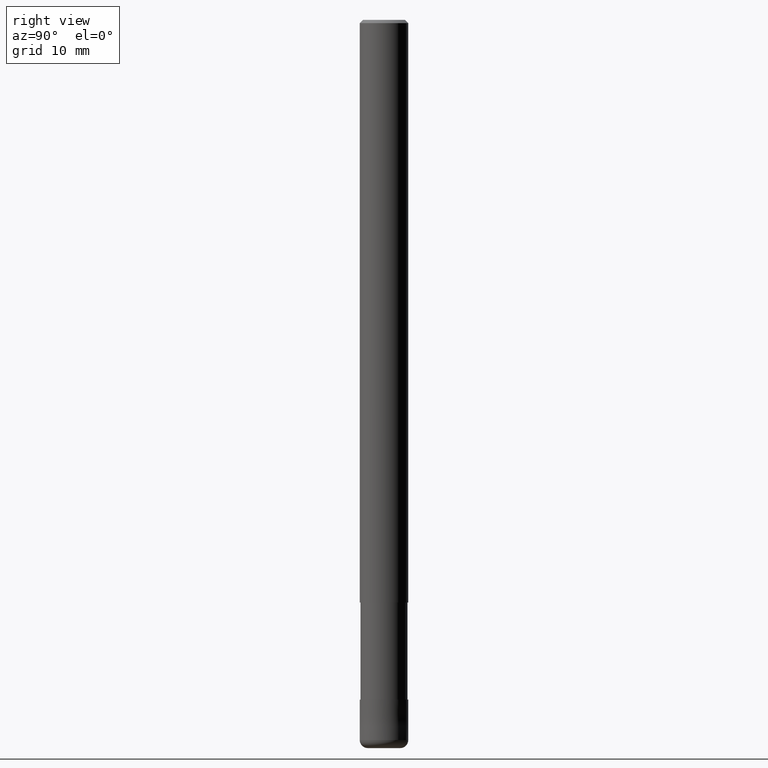
[diagram: clean part render]
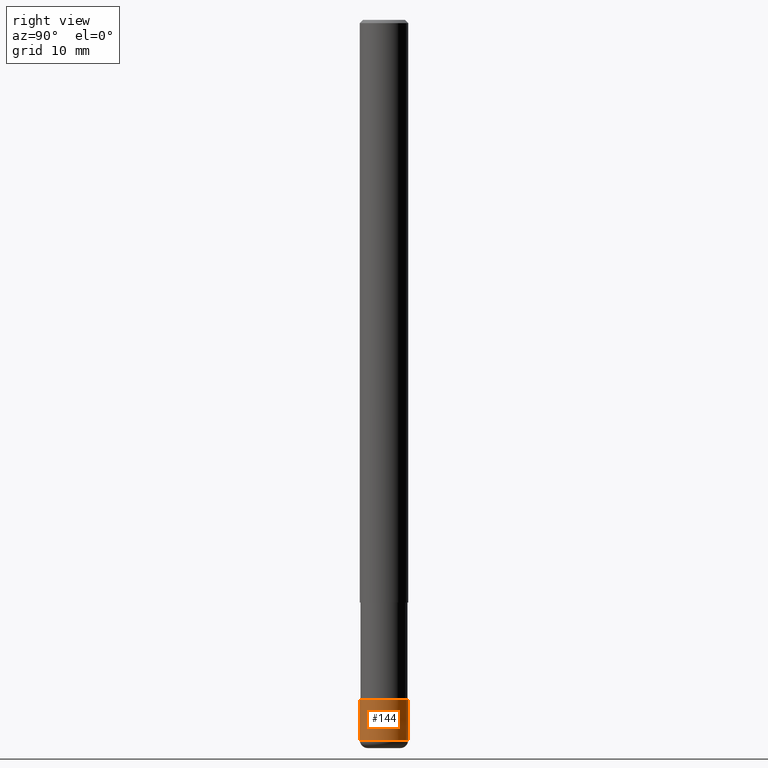
[diagram: same view with one face highlighted and labeled with its STEP entity id]
A machine part, right view. The second image highlights one B-rep face of the part: STEP entity #144.
In plain terms, the highlighted conical surface has half-angle 0.001 deg.
Its self-contained STEP definition (entity closure, byte-faithful):
#96=EDGE_CURVE('',#136,#186,#233,.T.);
#118=VERTEX_POINT('',#258);
#136=VERTEX_POINT('',#278);
#144=ADVANCED_FACE('',(#288),#289,.T.);
#152=VERTEX_POINT('',#297);
#170=EDGE_CURVE('',#186,#152,#318,.T.);
#186=VERTEX_POINT('',#335);
#202=EDGE_CURVE('',#152,#118,#355,.T.);
#208=EDGE_CURVE('',#136,#118,#361,.T.);
#233=LINE('',#379,#380);
#258=CARTESIAN_POINT('',(3.67369660083175E-016,-2.9999,-84.0));
#278=CARTESIAN_POINT('',(0.0,2.9999,-84.0));
#288=FACE_OUTER_BOUND('',#449,.T.);
#289=CONICAL_SURFACE('',#450,2.99995,1.99999999973755E-005);
#297=CARTESIAN_POINT('',(3.67381906146713E-016,-3.0,-89.0));
#318=CIRCLE('',#485,3.0);
#335=CARTESIAN_POINT('',(0.0,3.0,-89.0));
#355=LINE('',#528,#529);
#361=CIRCLE('',#538,2.9999);
#379=CARTESIAN_POINT('',(-3.67375783114944E-016,2.99995,-86.5));
#380=VECTOR('',#544,1.0);
#449=EDGE_LOOP('',(#612,#613,#614,#615));
#450=AXIS2_PLACEMENT_3D('',#616,#617,#618);
#485=AXIS2_PLACEMENT_3D('',#652,#653,#654);
#528=CARTESIAN_POINT('',(3.67375783114944E-016,-2.99995,-86.5));
#529=VECTOR('',#706,1.0);
#538=AXIS2_PLACEMENT_3D('',#713,#714,#715);
#544=DIRECTION('',(-2.44921270716008E-021,1.99999999960422E-005,-0.9999999998));
#612=ORIENTED_EDGE('',*,*,#96,.F.);
#613=ORIENTED_EDGE('',*,*,#208,.T.);
#614=ORIENTED_EDGE('',*,*,#202,.F.);
#615=ORIENTED_EDGE('',*,*,#170,.F.);
#616=CARTESIAN_POINT('',(0.0,0.0,-86.5));
#617=DIRECTION('',(0.0,-0.0,-1.0));
#618=DIRECTION('',(0.0,1.0,0.0));
#652=CARTESIAN_POINT('',(0.0,0.0,-89.0));
#653=DIRECTION('',(0.0,0.0,-1.0));
#654=DIRECTION('',(0.0,1.0,0.0));
#706=DIRECTION('',(-2.44921270716008E-021,1.99999999960422E-005,0.9999999998));
#713=CARTESIAN_POINT('',(0.0,0.0,-84.0));
#714=DIRECTION('',(0.0,0.0,-1.0));
#715=DIRECTION('',(0.0,1.0,0.0));